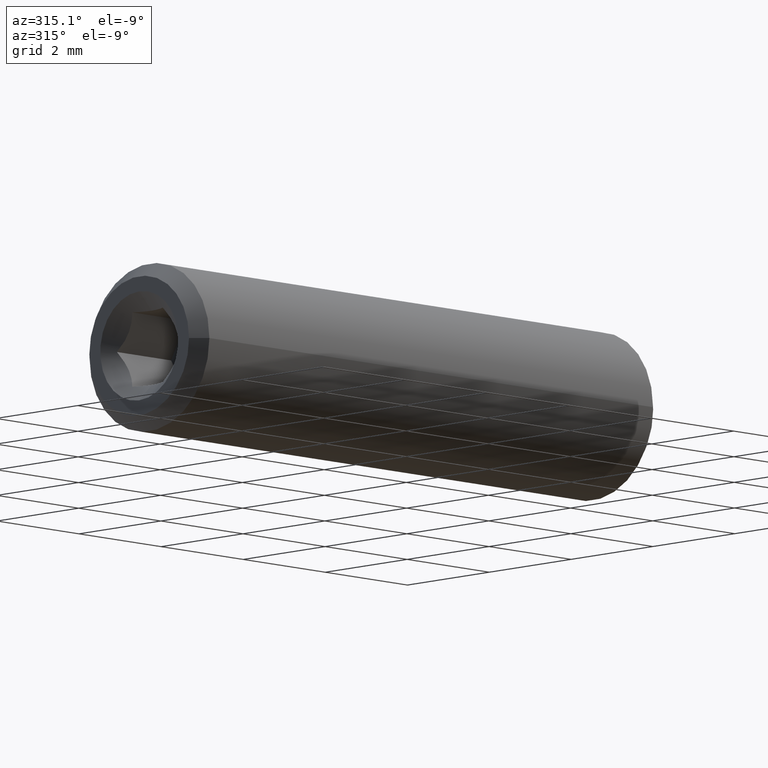
[diagram: clean part render]
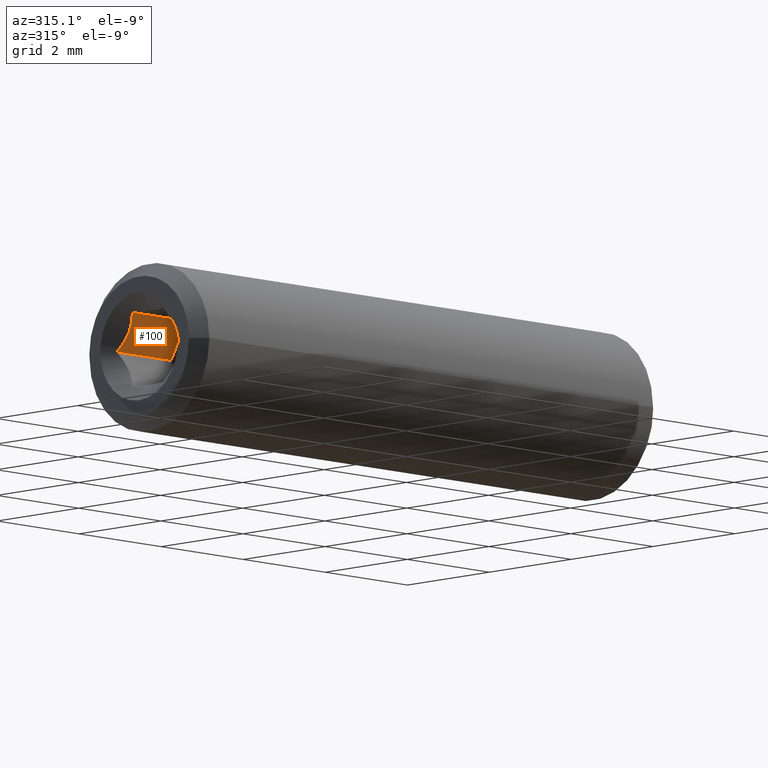
[diagram: same view with one face highlighted and labeled with its STEP entity id]
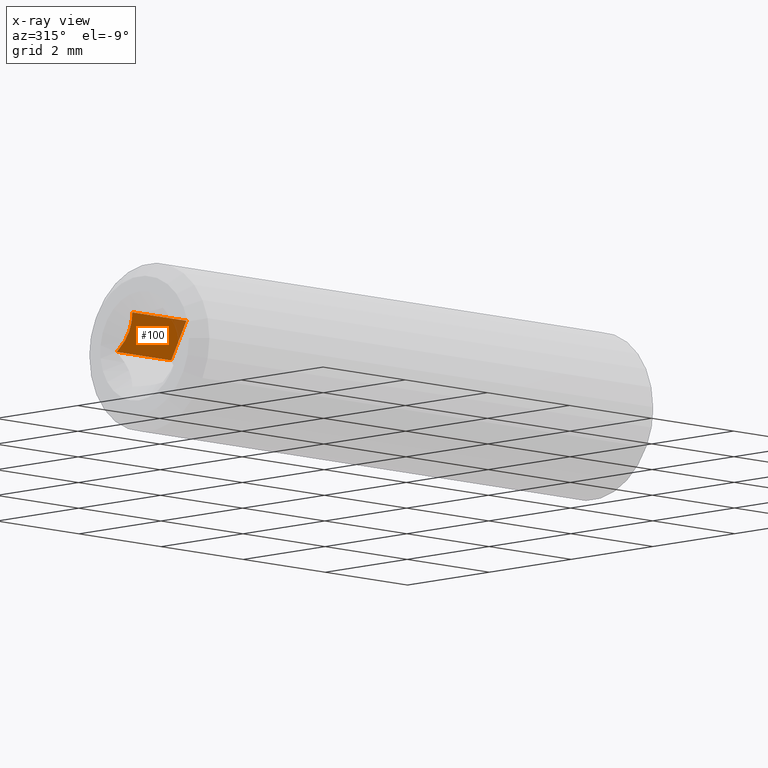
[diagram: x-ray of the same camera — body ghosted, the highlighted face saturated]
A machine part, auxiliary view. The second image highlights one B-rep face of the part: STEP entity #100.
The next image is the same camera in x-ray: the body ghosted, the highlighted face saturated — about 6% of this face is hidden behind the body in this view.
In plain terms, the highlighted planar face has unit normal (-0, -0.866, -0.5).
Its self-contained STEP definition (entity closure, byte-faithful):
#63 = EDGE_CURVE ( 'NONE', #288, #338, #363, .T. ) ;
#68 = EDGE_CURVE ( 'NONE', #325, #288, #370, .T. ) ;
#73 = EDGE_CURVE ( 'NONE', #276, #338, #1120, .T. ) ;
#100 = ADVANCED_FACE ( 'NONE', ( #394 ), #657, .T. ) ;
#166 = EDGE_CURVE ( 'NONE', #325, #276, #249, .T. ) ;
#249 = LINE ( 'NONE', #637, #739 ) ;
#276 = VERTEX_POINT ( 'NONE', #921 ) ;
#288 = VERTEX_POINT ( 'NONE', #892 ) ;
#297 = EDGE_LOOP ( 'NONE', ( #1092, #1091, #1093, #1090 ) ) ;
#325 = VERTEX_POINT ( 'NONE', #910 ) ;
#338 = VERTEX_POINT ( 'NONE', #930 ) ;
#363 = LINE ( 'NONE', #986, #871 ) ;
#370 = LINE ( 'NONE', #998, #799 ) ;
#394 = FACE_OUTER_BOUND ( 'NONE', #297, .T. ) ;
#564 = CARTESIAN_POINT ( 'NONE',  ( -0.9860520197642102000, 0.3856241629648692300, 0.2231550588266761100 ) ) ;
#609 = DIRECTION ( 'NONE',  ( -1.000000000000000000, 4.906129737190212900E-016, -0.0000000000000000000 ) ) ;
#612 = DIRECTION ( 'NONE',  ( -4.248832986668993800E-016, -0.8660254037844383700, -0.5000000000000006700 ) ) ;
#630 = DIRECTION ( 'NONE',  ( 0.0000000000000000000, 0.5000000000000005600, -0.8660254037844382600 ) ) ;
#637 = CARTESIAN_POINT ( 'NONE',  ( -0.9860520197642102000, 0.4207487977552127300, 0.1623174067724998400 ) ) ;
#657 = PLANE ( 'NONE',  #868 ) ;
#739 = VECTOR ( 'NONE', #609, 39.37007874015748100 ) ;
#799 = VECTOR ( 'NONE', #999, 39.37007874015748900 ) ;
#868 = AXIS2_PLACEMENT_3D ( 'NONE', #564, #612, #630 ) ;
#871 = VECTOR ( 'NONE', #987, 39.37007874015748100 ) ;
#892 = CARTESIAN_POINT ( 'NONE',  ( -0.9860520197642102000, 0.4059987977552126900, 0.1878651561841407400 ) ) ;
#910 = CARTESIAN_POINT ( 'NONE',  ( -0.9860520197642102000, 0.4207487977552127300, 0.1623174067724998400 ) ) ;
#921 = CARTESIAN_POINT ( 'NONE',  ( -1.038052019764209600, 0.4207487977552127300, 0.1623174067724998400 ) ) ;
#930 = CARTESIAN_POINT ( 'NONE',  ( -1.038052019764209100, 0.4059987977552126900, 0.1878651561841407400 ) ) ;
#986 = CARTESIAN_POINT ( 'NONE',  ( -0.9860520197642102000, 0.4059987977552126900, 0.1878651561841407400 ) ) ;
#987 = DIRECTION ( 'NONE',  ( -1.000000000000000000, 4.906129737190212900E-016, -0.0000000000000000000 ) ) ;
#998 = CARTESIAN_POINT ( 'NONE',  ( -0.9860520197642102000, 0.3856241629648692300, 0.2231550588266761100 ) ) ;
#999 = DIRECTION ( 'NONE',  ( -3.076445886477661100E-016, -0.5000000000000004400, 0.8660254037844382600 ) ) ;
#1022 = CARTESIAN_POINT ( 'NONE',  ( -1.034519691857087100, 0.4159767696628431400, 0.1705828018836300900 ) ) ;
#1026 = CARTESIAN_POINT ( 'NONE',  ( -1.035919743309949000, 0.4184179564848859400, 0.1663545422770843500 ) ) ;
#1027 = CARTESIAN_POINT ( 'NONE',  ( -1.036899601449207800, 0.4195963794402106700, 0.1643134538456564300 ) ) ;
#1028 = CARTESIAN_POINT ( 'NONE',  ( -1.035733554507514600, 0.4083172630118526700, 0.1838494565640570700 ) ) ;
#1029 = CARTESIAN_POINT ( 'NONE',  ( -1.038052019764209100, 0.4059987977552126900, 0.1878651561841407400 ) ) ;
#1030 = CARTESIAN_POINT ( 'NONE',  ( -1.034088861108279200, 0.4108257078634732800, 0.1795047026330655600 ) ) ;
#1031 = CARTESIAN_POINT ( 'NONE',  ( -1.038052019764209600, 0.4207487977552127300, 0.1623174067724998400 ) ) ;
#1032 = CARTESIAN_POINT ( 'NONE',  ( -1.034105310065370300, 0.4146886376555198300, 0.1728139119671696900 ) ) ;
#1090 = ORIENTED_EDGE ( 'NONE', *, *, #63, .T. ) ;
#1091 = ORIENTED_EDGE ( 'NONE', *, *, #166, .F. ) ;
#1092 = ORIENTED_EDGE ( 'NONE', *, *, #73, .F. ) ;
#1093 = ORIENTED_EDGE ( 'NONE', *, *, #68, .T. ) ;
#1120 = B_SPLINE_CURVE_WITH_KNOTS ( 'NONE', 3,
 ( #1031, #1027, #1026, #1022, #1032, #1030, #1028, #1029 ),
 .UNSPECIFIED., .F., .F.,
 ( 4, 2, 2, 4 ),
 ( 2.544447900367086700E-007, 0.0001937523075417564600, 0.0003872501702934762100, 0.0007742458957969179900 ),
 .UNSPECIFIED. ) ;